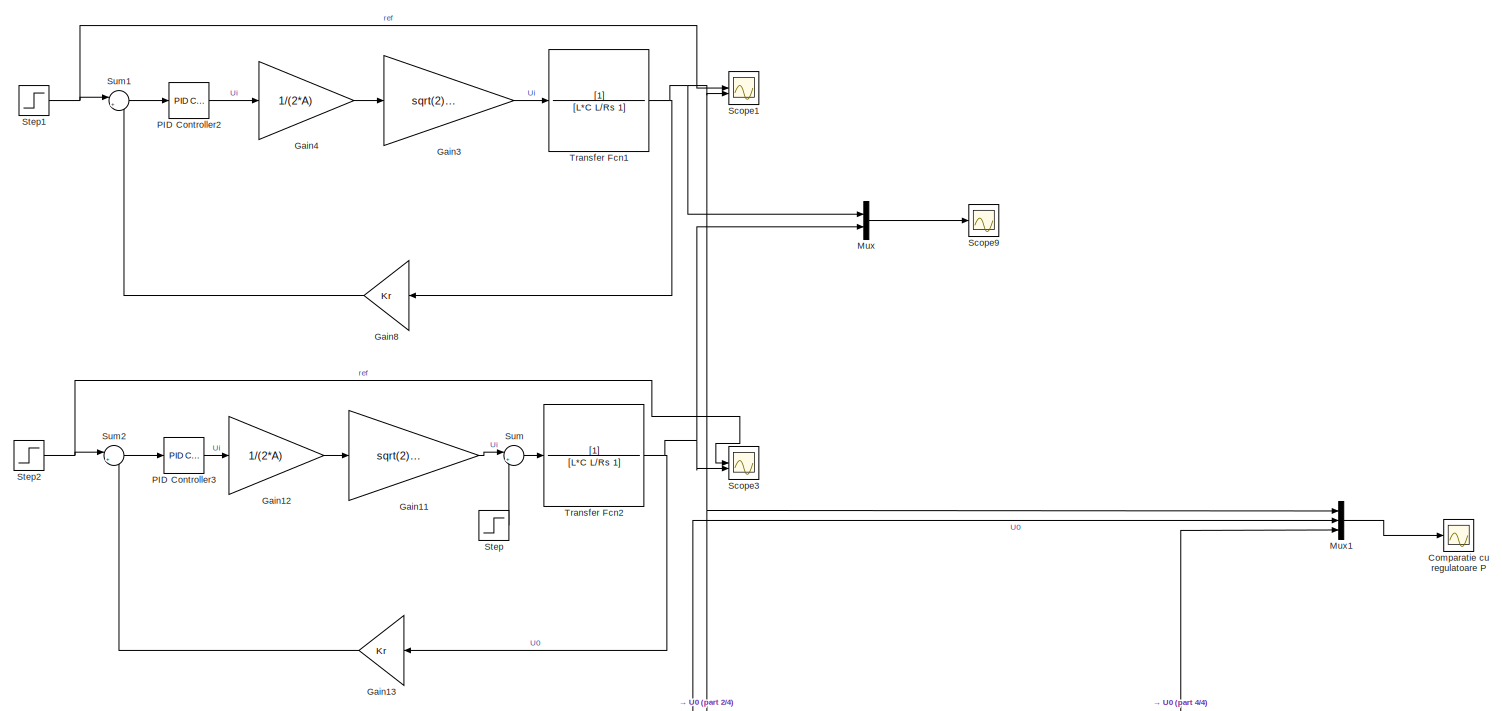
[diagram: root canvas - part 1/4, full width, top band]
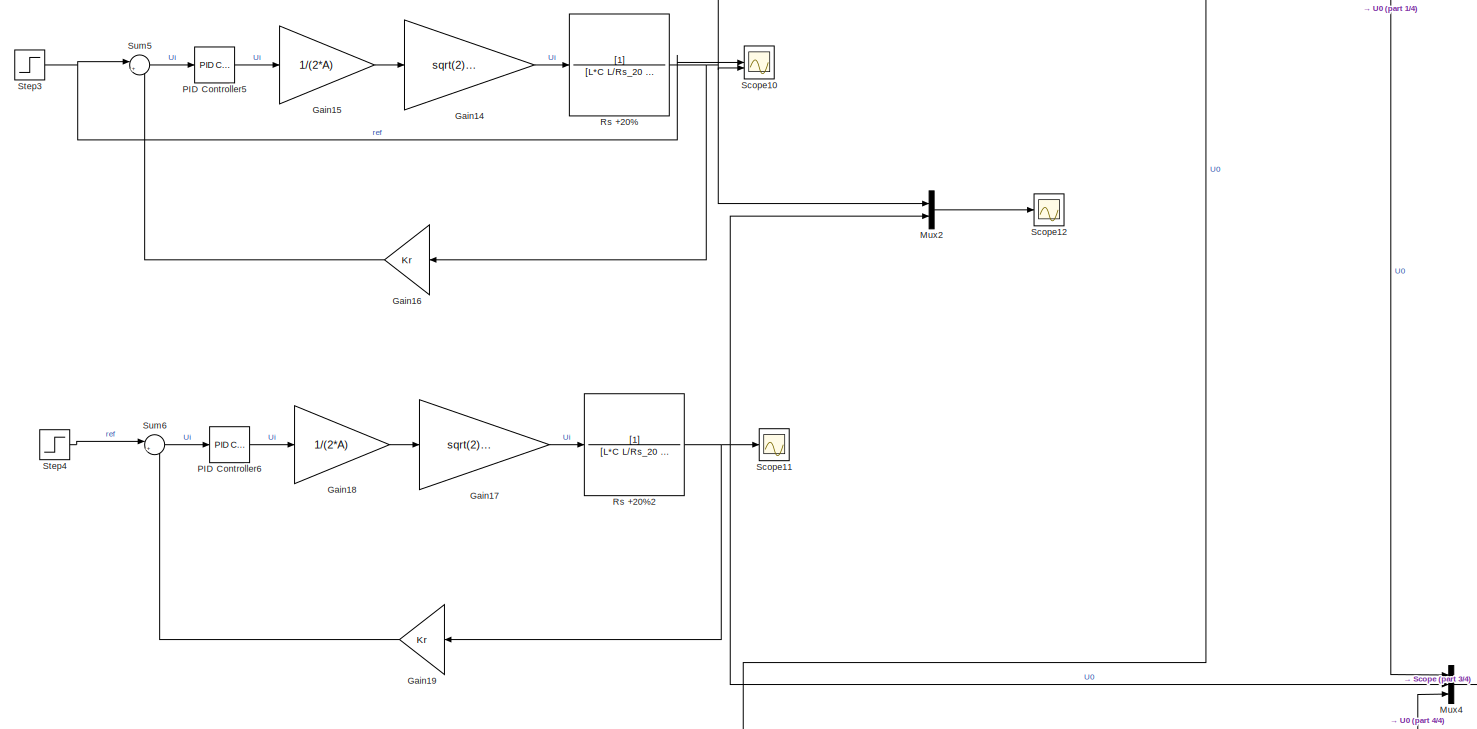
[diagram: root canvas - part 2/4, full width, middle band]
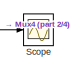
[diagram: root canvas - part 3/4, middle right region]
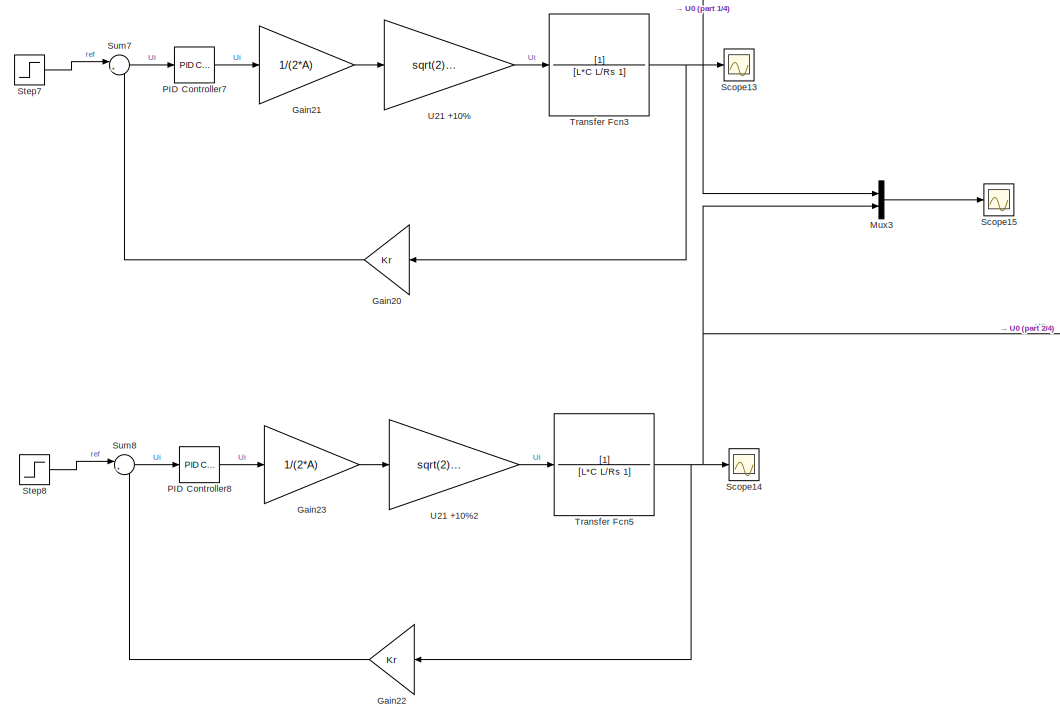
[diagram: root canvas - part 4/4, bottom center region]
MODEL slx_f544d458dbc5
KIND model
CONFIG AbsTol = auto
CONFIG EnableMultiTasking = off
CONFIG FixedStep = 1e-5
CONFIG MaxStep = auto
CONFIG MinStep = auto
CONFIG RelTol = 1e-3
CONFIG SampleTimeConstraint = Unconstrained
CONFIG SolverName = FixedStepAuto
CONFIG StartTime = 0.0
CONFIG StopTime = 0.004
BLOCK [Scope] Comparatie cu regulatoare P
  Floating = off
  NumInputPorts = 1
  ScopeSpecificationString = Simulink.scopes.TimeScopeBlockCfg('CurrentConfiguration', extmgr.ConfigurationSet(extmgr.Configuration('Core','General UI',true),extmgr.Configuration('Core','Source UI',true),extmgr.Configuration('Sources','WiredSimulink',true),extmgr.Configuration('Visuals','Time Domain',true,'SerializedDisplays',{struct('MinYLimReal','-4.63707','MaxYLimReal','41.73367','YLabelReal','','MinYLimMag','0.00000','Max...<+1355ch>
BLOCK [Gain] Gain11
  Gain = sqrt(2)*Ku*U21
BLOCK [Gain] Gain12
  Gain = 1/(2*A)
BLOCK [Gain] Gain13
  Gain = Kr
  NameLocation = top
BLOCK [Gain] Gain14
  Gain = sqrt(2)*Ku*U21
BLOCK [Gain] Gain15
  Gain = 1/(2*A)
BLOCK [Gain] Gain16
  Gain = Kr
  NameLocation = top
BLOCK [Gain] Gain17
  Gain = sqrt(2)*Ku*U21
BLOCK [Gain] Gain18
  Gain = 1/(2*A)
BLOCK [Gain] Gain19
  Gain = Kr
  NameLocation = top
BLOCK [Gain] Gain20
  Gain = Kr
  NameLocation = top
BLOCK [Gain] Gain21
  Gain = 1/(2*A)
BLOCK [Gain] Gain22
  Gain = Kr
  NameLocation = top
BLOCK [Gain] Gain23
  Gain = 1/(2*A)
BLOCK [Gain] Gain3
  Gain = sqrt(2)*Ku*U21
BLOCK [Gain] Gain4
  Gain = 1/(2*A)
BLOCK [Gain] Gain8
  Gain = Kr
  NameLocation = top
BLOCK [Mux] Mux
  DisplayOption = bar
  Inputs = 2
BLOCK [Mux] Mux1
  DisplayOption = bar
  Inputs = 3
BLOCK [Mux] Mux2
  DisplayOption = bar
  Inputs = 2
BLOCK [Mux] Mux3
  DisplayOption = bar
  Inputs = 2
BLOCK [Mux] Mux4
  DisplayOption = bar
  Inputs = 3
BLOCK [Reference] PID Controller2  REF=slpidlib/PID Controller
  LibrarySourceBlock = simulink/Continuous/PID Controller
  SourceBlock = slpidlib/PID Controller
  SourceType = PID 1dof
BLOCK [Reference] PID Controller3  REF=slpidlib/PID Controller
  LibrarySourceBlock = simulink/Continuous/PID Controller
  SourceBlock = slpidlib/PID Controller
  SourceType = PID 1dof
BLOCK [Reference] PID Controller5  REF=slpidlib/PID Controller
  LibrarySourceBlock = simulink/Continuous/PID Controller
  SourceBlock = slpidlib/PID Controller
  SourceType = PID 1dof
BLOCK [Reference] PID Controller6  REF=slpidlib/PID Controller
  LibrarySourceBlock = simulink/Continuous/PID Controller
  SourceBlock = slpidlib/PID Controller
  SourceType = PID 1dof
BLOCK [Reference] PID Controller7  REF=slpidlib/PID Controller
  LibrarySourceBlock = simulink/Continuous/PID Controller
  SourceBlock = slpidlib/PID Controller
  SourceType = PID 1dof
BLOCK [Reference] PID Controller8  REF=slpidlib/PID Controller
  LibrarySourceBlock = simulink/Continuous/PID Controller
  SourceBlock = slpidlib/PID Controller
  SourceType = PID 1dof
BLOCK [TransferFcn] Rs +20%
  Denominator = [L*C L/Rs_20 1]
  NameLocation = top
BLOCK [TransferFcn] Rs +20%2
  Denominator = [L*C L/Rs_20 1]
  NameLocation = top
BLOCK [Scope] Scope
  Floating = off
  NumInputPorts = 1
  ScopeSpecificationString = Simulink.scopes.TimeScopeBlockCfg('CurrentConfiguration', extmgr.ConfigurationSet(extmgr.Configuration('Core','General UI',true),extmgr.Configuration('Core','Source UI',true),extmgr.Configuration('Sources','WiredSimulink',true,'DataLoggingVariableName','ScopeData4'),extmgr.Configuration('Visuals','Time Domain',true,'SerializedDisplays',{struct('MinYLimReal','21.00671','MaxYLimReal','21.2854','YLab...<+1392ch>
BLOCK [Scope] Scope1
  Floating = off
  NumInputPorts = 2
  ScopeSpecificationString = Simulink.scopes.TimeScopeBlockCfg('CurrentConfiguration', extmgr.ConfigurationSet(extmgr.Configuration('Core','General UI',true),extmgr.Configuration('Core','Source UI',true),extmgr.Configuration('Sources','WiredSimulink',true,'DataLoggingSaveFormat','Array','DataLoggingDecimation','1','DataLoggingVariableName','ScopeData1'),extmgr.Configuration('Visuals','Time Domain',true,'SerializedDisplays',{s...<+1657ch>
BLOCK [Scope] Scope10
  Floating = off
  NumInputPorts = 2
  ScopeSpecificationString = Simulink.scopes.TimeScopeBlockCfg('CurrentConfiguration', extmgr.ConfigurationSet(extmgr.Configuration('Core','General UI',true),extmgr.Configuration('Core','Source UI',true),extmgr.Configuration('Sources','WiredSimulink',true,'DataLoggingSaveFormat','Array','DataLoggingDecimation','1','DataLoggingVariableName','ScopeData10'),extmgr.Configuration('Visuals','Time Domain',true,'SerializedDisplays',{...<+1658ch>
BLOCK [Scope] Scope11
  Floating = off
  NumInputPorts = 1
  ScopeSpecificationString = Simulink.scopes.TimeScopeBlockCfg('CurrentConfiguration', extmgr.ConfigurationSet(extmgr.Configuration('Core','General UI',true),extmgr.Configuration('Core','Source UI',true),extmgr.Configuration('Sources','WiredSimulink',true,'DataLoggingSaveFormat','Array','DataLoggingDecimation','1','DataLoggingVariableName','ScopeData11'),extmgr.Configuration('Visuals','Time Domain',true,'SerializedDisplays',{...<+1623ch>
BLOCK [Scope] Scope12
  Floating = off
  NumInputPorts = 1
  ScopeSpecificationString = Simulink.scopes.TimeScopeBlockCfg('CurrentConfiguration', extmgr.ConfigurationSet(extmgr.Configuration('Core','General UI',true),extmgr.Configuration('Core','Source UI',true),extmgr.Configuration('Sources','WiredSimulink',true,'DataLoggingVariableName','ScopeData12'),extmgr.Configuration('Visuals','Time Domain',true,'SerializedDisplays',{struct('MinYLimReal','-4.33586','MaxYLimReal','39.02272','YL...<+1390ch>
BLOCK [Scope] Scope13
  Floating = off
  NumInputPorts = 1
  ScopeSpecificationString = Simulink.scopes.TimeScopeBlockCfg('CurrentConfiguration', extmgr.ConfigurationSet(extmgr.Configuration('Core','General UI',true),extmgr.Configuration('Core','Source UI',true),extmgr.Configuration('Sources','WiredSimulink',true,'DataLoggingSaveFormat','Array','DataLoggingLimitDataPoints',true,'DataLoggingDecimation','1','DataLoggingVariableName','ScopeData13'),extmgr.Configuration('Visuals','Time D...<+1642ch>
BLOCK [Scope] Scope14
  Floating = off
  NumInputPorts = 1
  ScopeSpecificationString = Simulink.scopes.TimeScopeBlockCfg('CurrentConfiguration', extmgr.ConfigurationSet(extmgr.Configuration('Core','General UI',true),extmgr.Configuration('Core','Source UI',true),extmgr.Configuration('Sources','WiredSimulink',true,'DataLoggingSaveFormat','Array','DataLoggingLimitDataPoints',true,'DataLoggingDecimation','1','DataLoggingVariableName','ScopeData14'),extmgr.Configuration('Visuals','Time D...<+1640ch>
BLOCK [Scope] Scope15
  Floating = off
  NumInputPorts = 1
  ScopeSpecificationString = Simulink.scopes.TimeScopeBlockCfg('CurrentConfiguration', extmgr.ConfigurationSet(extmgr.Configuration('Core','General UI',true),extmgr.Configuration('Core','Source UI',true),extmgr.Configuration('Sources','WiredSimulink',true,'DataLoggingVariableName','ScopeData15'),extmgr.Configuration('Visuals','Time Domain',true,'SerializedDisplays',{struct('MinYLimReal','19.79947','MaxYLimReal','23.48353','YL...<+1392ch>
BLOCK [Scope] Scope3
  Floating = off
  NumInputPorts = 2
  ScopeSpecificationString = Simulink.scopes.TimeScopeBlockCfg('CurrentConfiguration', extmgr.ConfigurationSet(extmgr.Configuration('Core','General UI',true),extmgr.Configuration('Core','Source UI',true),extmgr.Configuration('Sources','WiredSimulink',true,'DataLoggingSaveFormat','Array','DataLoggingDecimation','1','DataLoggingVariableName','ScopeData3'),extmgr.Configuration('Visuals','Time Domain',true,'SerializedDisplays',{s...<+1632ch>
BLOCK [Scope] Scope9
  Floating = off
  NumInputPorts = 1
  ScopeSpecificationString = Simulink.scopes.TimeScopeBlockCfg('CurrentConfiguration', extmgr.ConfigurationSet(extmgr.Configuration('Core','General UI',true),extmgr.Configuration('Core','Source UI',true),extmgr.Configuration('Sources','WiredSimulink',true,'DataLoggingVariableName','ScopeData9'),extmgr.Configuration('Visuals','Time Domain',true,'SerializedDisplays',{struct('MinYLimReal','-4.52863','MaxYLimReal','40.75764','YLa...<+1426ch>
BLOCK [Step] Step
  After = 10
  SampleTime = 0
  Time = 0.0025
BLOCK [Step] Step1
  After = 11.1
  Before = 1
  SampleTime = 1
  Time = 0
BLOCK [Step] Step2
  After = 11.1
  Before = 1
  SampleTime = 1
  Time = 0
BLOCK [Step] Step3
  After = 11.1
  Before = 1
  SampleTime = 1
  Time = 0
BLOCK [Step] Step4
  After = 11.1
  Before = 1
  SampleTime = 1
  Time = 0
BLOCK [Step] Step7
  After = 11
  SampleTime = 0
  Time = 0.5
BLOCK [Step] Step8
  After = 11
  SampleTime = 0
  Time = 0.5
BLOCK [Sum] Sum
  Inputs = |++
BLOCK [Sum] Sum1
  Inputs = |+-
BLOCK [Sum] Sum2
  Inputs = |+-
BLOCK [Sum] Sum5
  Inputs = |+-
BLOCK [Sum] Sum6
  Inputs = |+-
BLOCK [Sum] Sum7
  Inputs = |+-
BLOCK [Sum] Sum8
  Inputs = |+-
BLOCK [TransferFcn] Transfer Fcn1
  Denominator = [L*C L/Rs 1]
BLOCK [TransferFcn] Transfer Fcn2
  Denominator = [L*C L/Rs 1]
BLOCK [TransferFcn] Transfer Fcn3
  Denominator = [L*C L/Rs 1]
BLOCK [TransferFcn] Transfer Fcn5
  Denominator = [L*C L/Rs 1]
BLOCK [Gain] U21 +10%
  Gain = sqrt(2)*Ku*U21_10
  NameLocation = top
BLOCK [Gain] U21 +10%2
  Gain = sqrt(2)*Ku*U21_10
  NameLocation = top
LINE Gain11:1 -> Sum:1
LINE Gain12:1 -> Gain11:1
LINE Gain13:1 -> Sum2:2
LINE Gain14:1 -> Rs +20%:1
LINE Gain15:1 -> Gain14:1
LINE Gain16:1 -> Sum5:2
LINE Gain17:1 -> Rs +20%2:1
LINE Gain18:1 -> Gain17:1
LINE Gain19:1 -> Sum6:2
LINE Gain20:1 -> Sum7:2
LINE Gain21:1 -> U21 +10%:1
LINE Gain22:1 -> Sum8:2
LINE Gain23:1 -> U21 +10%2:1
LINE Gain3:1 -> Transfer Fcn1:1
LINE Gain4:1 -> Gain3:1
LINE Gain8:1 -> Sum1:2
LINE Mux1:1 -> Comparatie cu regulatoare P:1
LINE Mux2:1 -> Scope12:1
LINE Mux3:1 -> Scope15:1
LINE Mux4:1 -> Scope:1
LINE Mux:1 -> Scope9:1
LINE PID Controller2:1 -> Gain4:1
LINE PID Controller3:1 -> Gain12:1
LINE PID Controller5:1 -> Gain15:1
LINE PID Controller6:1 -> Gain18:1
LINE PID Controller7:1 -> Gain21:1
LINE PID Controller8:1 -> Gain23:1
NET Rs +20%2:1 -> Gain19:1, Mux2:2, Mux4:2, Scope11:1
NET Rs +20%:1 -> Gain16:1, Mux1:2, Mux2:1, Scope10:2
NET Step1:1 -> Scope1:1, Sum1:1
NET Step2:1 -> Scope3:1, Sum2:1
NET Step3:1 -> Scope10:1, Sum5:1
LINE Step4:1 -> Sum6:1
LINE Step7:1 -> Sum7:1
LINE Step8:1 -> Sum8:1
LINE Step:1 -> Sum:2
LINE Sum1:1 -> PID Controller2:1
LINE Sum2:1 -> PID Controller3:1
LINE Sum5:1 -> PID Controller5:1
LINE Sum6:1 -> PID Controller6:1
LINE Sum7:1 -> PID Controller7:1
LINE Sum8:1 -> PID Controller8:1
LINE Sum:1 -> Transfer Fcn2:1
NET Transfer Fcn1:1 -> Gain8:1, Mux1:1, Mux4:1, Mux:1, Scope1:2
NET Transfer Fcn2:1 -> Gain13:1, Mux:2, Scope3:2
NET Transfer Fcn3:1 -> Gain20:1, Mux1:3, Mux3:1, Scope13:1
NET Transfer Fcn5:1 -> Gain22:1, Mux3:2, Mux4:3, Scope14:1
LINE U21 +10%2:1 -> Transfer Fcn5:1
LINE U21 +10%:1 -> Transfer Fcn3:1
note: NET lines group one-source signal fan-out (src -> all destinations, sorted); 1:1 wires keep LINE
